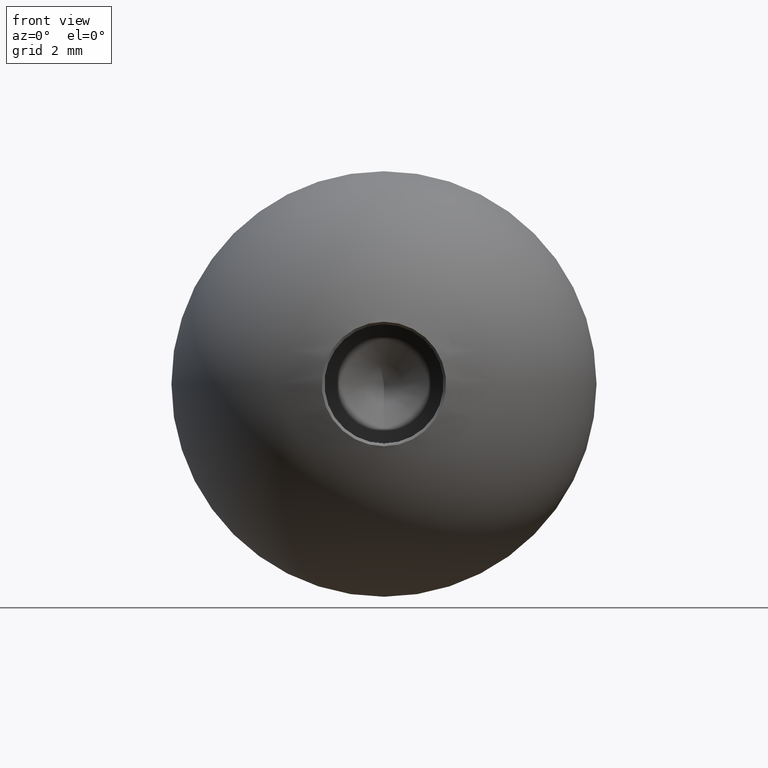
[diagram: clean part render]
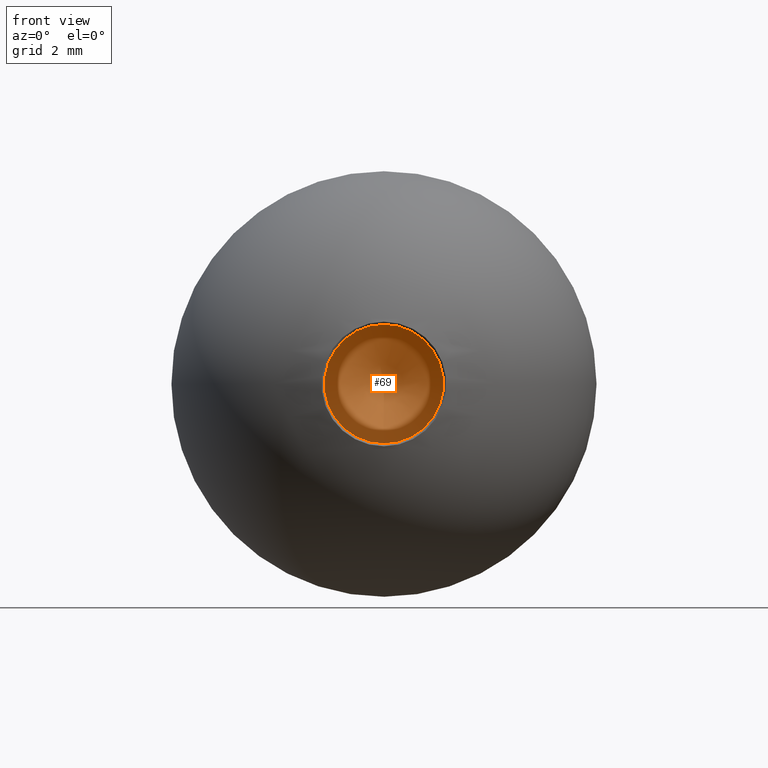
[diagram: same view with one face highlighted and labeled with its STEP entity id]
A machine part, front view. The second image highlights one B-rep face of the part: STEP entity #69.
In plain terms, the highlighted conical surface has half-angle 59 deg.
Its self-contained STEP definition (entity closure, byte-faithful):
#5 = CARTESIAN_POINT ( 'NONE',  ( 0.000000000000000000, 12.00000000000000000, 0.000000000000000000 ) ) ;
#8 = AXIS2_PLACEMENT_3D ( 'NONE', #44, #78, #73 ) ;
#16 = EDGE_CURVE ( 'NONE', #61, #61, #150, .T. ) ;
#44 = CARTESIAN_POINT ( 'NONE',  ( 0.000000000000000000, 12.00000000000000000, 0.000000000000000000 ) ) ;
#55 = DIRECTION ( 'NONE',  ( 0.000000000000000000, 0.000000000000000000, -1.000000000000000000 ) ) ;
#57 = EDGE_LOOP ( 'NONE', ( #141 ) ) ;
#61 = VERTEX_POINT ( 'NONE', #93 ) ;
#69 = ADVANCED_FACE ( 'NONE', ( #122 ), #86, .F. ) ;
#73 = DIRECTION ( 'NONE',  ( 0.000000000000000000, 0.000000000000000000, -1.000000000000000000 ) ) ;
#78 = DIRECTION ( 'NONE',  ( -0.000000000000000000, -1.000000000000000000, -0.000000000000000000 ) ) ;
#79 = DIRECTION ( 'NONE',  ( -0.000000000000000000, -1.000000000000000000, -0.000000000000000000 ) ) ;
#86 = CONICAL_SURFACE ( 'NONE', #92, 2.099999999999997424, 1.029744258676653423 ) ;
#92 = AXIS2_PLACEMENT_3D ( 'NONE', #5, #79, #55 ) ;
#93 = CARTESIAN_POINT ( 'NONE',  ( 0.000000000000000000, 12.00000000000000000, -2.099999999999997424 ) ) ;
#122 = FACE_OUTER_BOUND ( 'NONE', #57, .T. ) ;
#141 = ORIENTED_EDGE ( 'NONE', *, *, #16, .T. ) ;
#150 = CIRCLE ( 'NONE', #8, 2.099999999999997424 ) ;